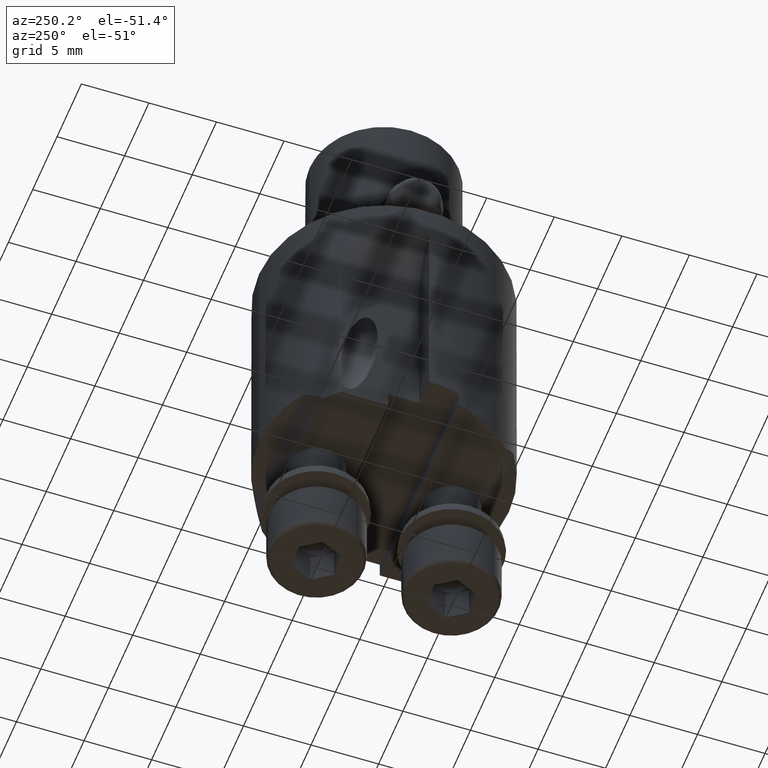
[diagram: clean part render]
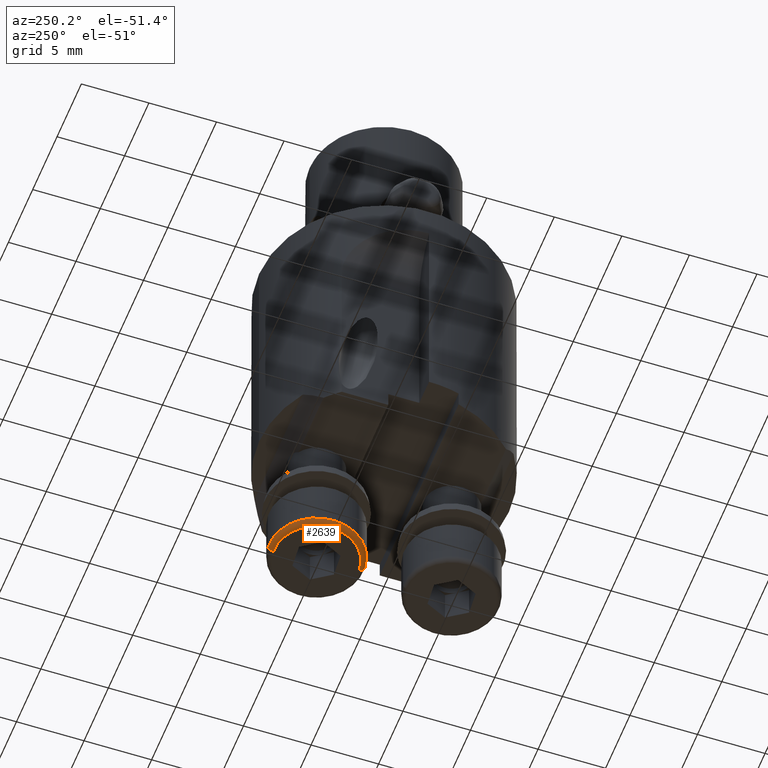
[diagram: same view with one face highlighted and labeled with its STEP entity id]
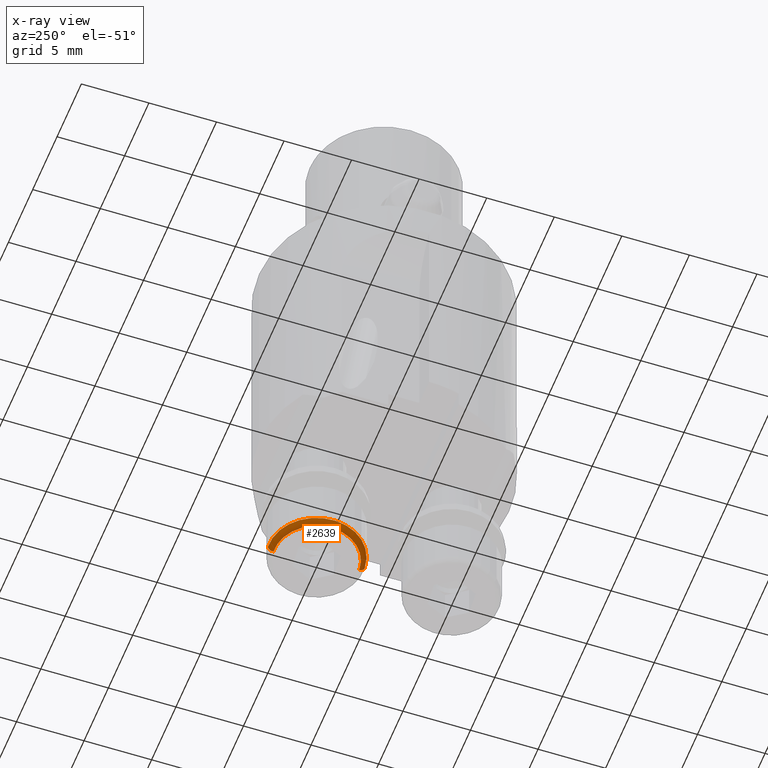
[diagram: x-ray of the same camera — body ghosted, the highlighted face saturated]
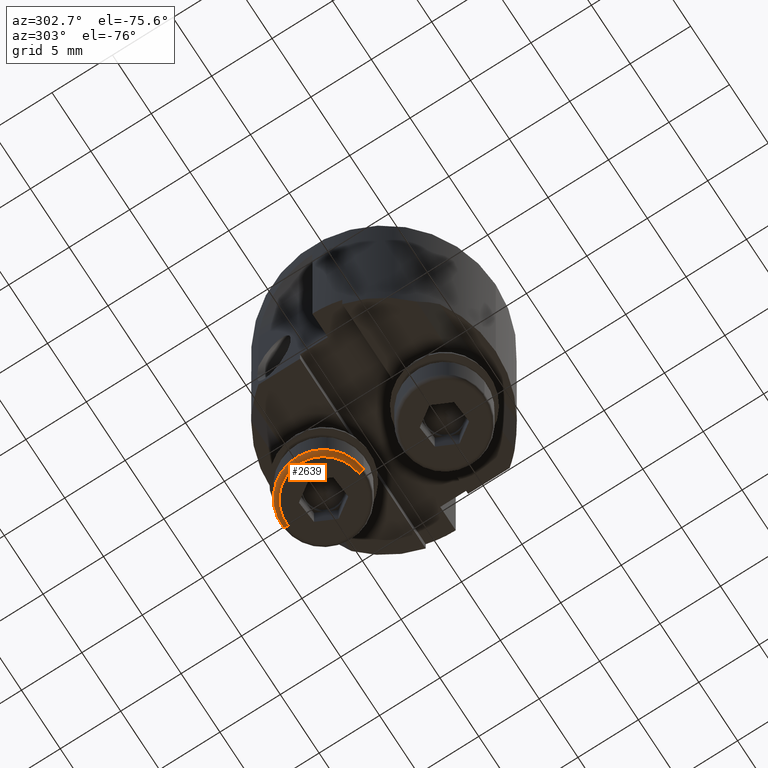
[diagram: same view with one face highlighted and labeled with its STEP entity id]
A machine part, auxiliary view. The second image highlights one B-rep face of the part: STEP entity #2639.
The next image is the same camera in x-ray: the body ghosted, the highlighted face saturated — about 0% of this face is hidden behind the body in this view.
A second angle (auxiliary view) of the same face is appended — the face is thin or edge-on in the first view.
In plain terms, the highlighted toroidal blend (fillet) surface has major radius 3.1 mm and minor (blend) radius 0.4 mm.
Its self-contained STEP definition (entity closure, byte-faithful):
#1131=EDGE_CURVE('NONE',#3227,#1143,#3278,.T.);
#1143=VERTEX_POINT('NONE',#3290);
#1803=VERTEX_POINT('NONE',#4040);
#1933=VERTEX_POINT('NONE',#4187);
#2587=EDGE_CURVE('NONE',#1933,#1803,#4919,.T.);
#2639=ADVANCED_FACE('NONE',(#4979),#4980,.T.);
#2829=EDGE_CURVE('NONE',#1803,#1143,#5186,.T.);
#2837=EDGE_CURVE('NONE',#3227,#1933,#5195,.T.);
#3227=VERTEX_POINT('NONE',#5625);
#3278=CIRCLE('',#5682,0.4);
#3290=CARTESIAN_POINT('',(-0.276595929164175,1.51094644753484,-30.3));
#4040=CARTESIAN_POINT('',(0.276595929164173,8.48905355246517,-30.3));
#4187=CARTESIAN_POINT('',(0.244984965831125,8.09030457504058,-30.7));
#4919=CIRCLE('',#8303,0.4);
#4979=FACE_OUTER_BOUND('',#8381,.T.);
#4980=TOROIDAL_SURFACE('',#8382,3.1,0.4);
#5186=CIRCLE('',#8717,3.5);
#5195=CIRCLE('',#8730,3.1);
#5625=CARTESIAN_POINT('',(-0.244984965831127,1.90969542495943,-30.7));
#5682=AXIS2_PLACEMENT_3D('',#9373,#9374,#9375);
#8303=AXIS2_PLACEMENT_3D('',#11474,#11475,#11476);
#8381=EDGE_LOOP('',(#11563,#11564,#11565,#11566));
#8382=AXIS2_PLACEMENT_3D('',#11567,#11568,#11569);
#8717=AXIS2_PLACEMENT_3D('',#11789,#11790,#11791);
#8730=AXIS2_PLACEMENT_3D('',#11805,#11806,#11807);
#9373=CARTESIAN_POINT('',(-0.244984965831127,1.90969542495943,-30.3));
#9374=DIRECTION('',(-0.996872443561477,0.0790274083326214,1.09672560384163E-018));
#9375=DIRECTION('',(-0.0790274083326214,-0.996872443561476,-1.38343842432037E-017));
#11474=CARTESIAN_POINT('',(0.244984965831125,8.09030457504058,-30.3));
#11475=DIRECTION('',(0.996872443561477,-0.0790274083326213,-1.09672560384163E-018));
#11476=DIRECTION('',(0.0790274083326213,0.996872443561476,1.38343842432037E-017));
#11563=ORIENTED_EDGE('',*,*,#2837,.F.);
#11564=ORIENTED_EDGE('',*,*,#1131,.T.);
#11565=ORIENTED_EDGE('',*,*,#2829,.F.);
#11566=ORIENTED_EDGE('',*,*,#2587,.F.);
#11567=CARTESIAN_POINT('',(-5.92923063078012E-016,5.0,-30.3));
#11568=DIRECTION('',(5.13046894654664E-033,-1.38777878078145E-017,1.0));
#11569=DIRECTION('',(0.0790274083326213,0.996872443561476,1.38343842432037E-017));
#11789=CARTESIAN_POINT('',(-5.92923063078012E-016,5.0,-30.3));
#11790=DIRECTION('',(4.77945063749975E-033,-1.38777878078145E-017,1.0));
#11791=DIRECTION('',(0.0790274083326213,0.996872443561476,1.38343842432037E-017));
#11805=CARTESIAN_POINT('',(-5.92923063078012E-016,5.0,-30.7));
#11806=DIRECTION('',(-4.97014179196706E-033,1.38777878078145E-017,-1.0));
#11807=DIRECTION('',(0.0790274083326213,0.996872443561476,1.38343842432037E-017));